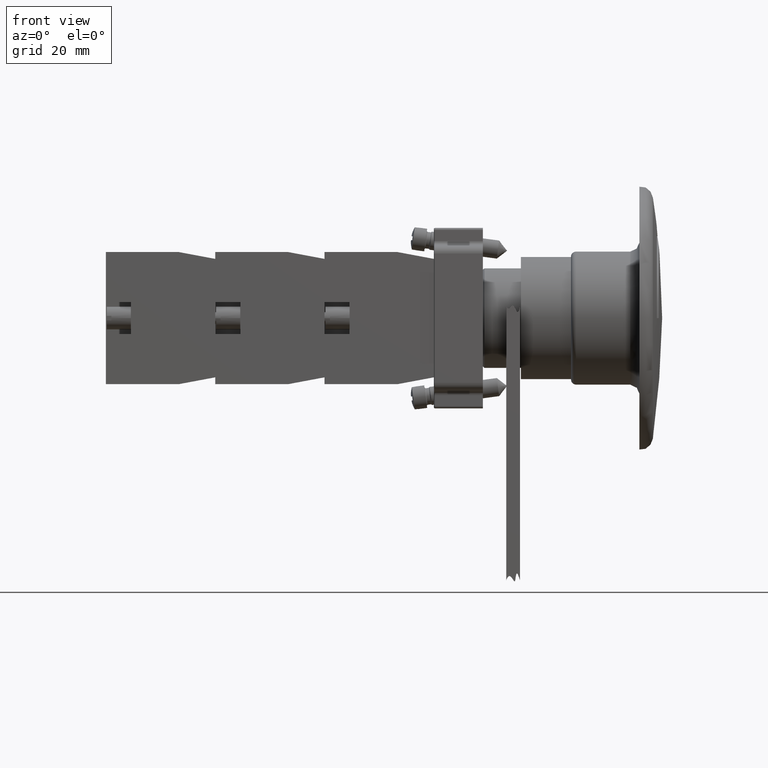
[diagram: clean part render]
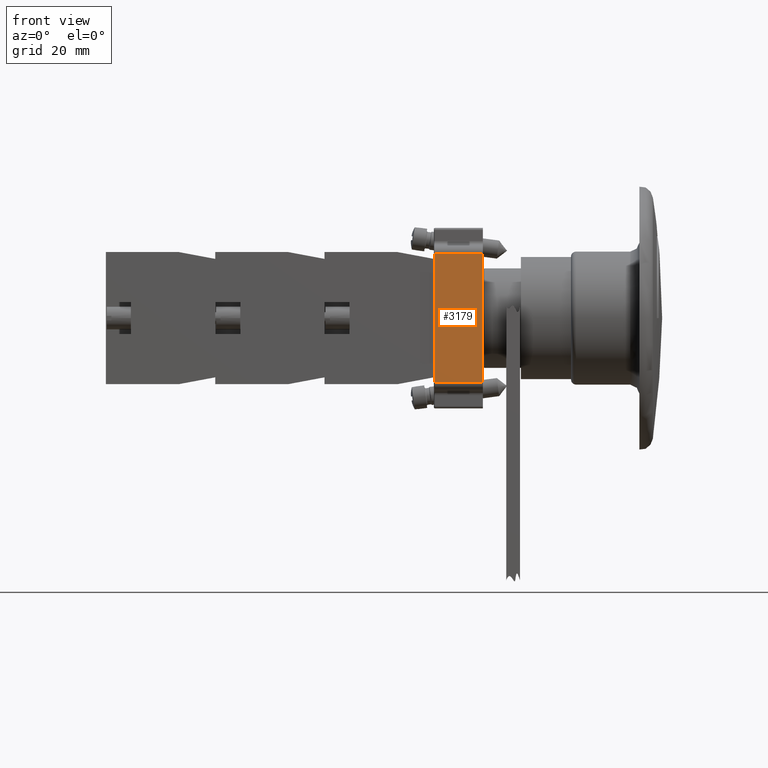
[diagram: same view with one face highlighted and labeled with its STEP entity id]
A machine part, front view. The second image highlights one B-rep face of the part: STEP entity #3179.
In plain terms, the highlighted planar face has unit normal (0, -1, -0).
Its self-contained STEP definition (entity closure, byte-faithful):
#1574=CARTESIAN_POINT('',(14.967219691723894,-4.857135171842447,10.500000000000000));
#1575=VERTEX_POINT('',#1574);
#1593=CARTESIAN_POINT('',(-13.332780308276105,-4.857135171842446,10.500000000000000));
#1594=VERTEX_POINT('',#1593);
#1602=CARTESIAN_POINT('',(-13.332780308276105,-4.857135171842446,10.500000000000000));
#1603=DIRECTION('',(1.0,0.0,0.0));
#1604=VECTOR('',#1603,28.299999999999997);
#1605=LINE('',#1602,#1604);
#1606=EDGE_CURVE('',#1594,#1575,#1605,.T.);
#3137=CARTESIAN_POINT('',(14.967219691723894,-4.857135171842447,0.0));
#3138=VERTEX_POINT('',#3137);
#3139=CARTESIAN_POINT('',(14.967219691723894,-4.857135171842447,0.0));
#3140=DIRECTION('',(0.0,0.0,1.0));
#3141=VECTOR('',#3140,10.500000000000000);
#3142=LINE('',#3139,#3141);
#3143=EDGE_CURVE('',#3138,#1575,#3142,.T.);
#3156=CARTESIAN_POINT('',(14.967219691723894,-4.857135171842447,0.0));
#3157=DIRECTION('',(0.0,-1.0,0.0));
#3158=DIRECTION('',(0.0,0.0,-1.0));
#3159=AXIS2_PLACEMENT_3D('',#3156,#3157,#3158);
#3160=PLANE('',#3159);
#3161=ORIENTED_EDGE('',*,*,#1606,.F.);
#3162=CARTESIAN_POINT('',(-13.332780308276105,-4.857135171842446,0.0));
#3163=VERTEX_POINT('',#3162);
#3164=CARTESIAN_POINT('',(-13.332780308276105,-4.857135171842446,0.0));
#3165=DIRECTION('',(0.0,0.0,1.0));
#3166=VECTOR('',#3165,10.500000000000000);
#3167=LINE('',#3164,#3166);
#3168=EDGE_CURVE('',#3163,#1594,#3167,.T.);
#3169=ORIENTED_EDGE('',*,*,#3168,.F.);
#3170=CARTESIAN_POINT('',(-13.332780308276105,-4.857135171842446,0.0));
#3171=DIRECTION('',(1.0,0.0,0.0));
#3172=VECTOR('',#3171,28.299999999999997);
#3173=LINE('',#3170,#3172);
#3174=EDGE_CURVE('',#3163,#3138,#3173,.T.);
#3175=ORIENTED_EDGE('',*,*,#3174,.T.);
#3176=ORIENTED_EDGE('',*,*,#3143,.T.);
#3177=EDGE_LOOP('',(#3161,#3169,#3175,#3176));
#3178=FACE_OUTER_BOUND('',#3177,.T.);
#3179=ADVANCED_FACE('',(#3178),#3160,.T.);